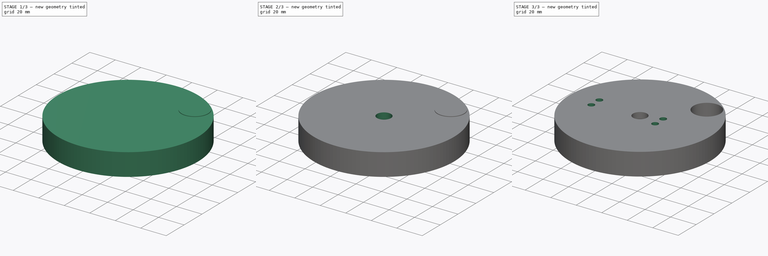
[diagram: build sequence overview — one tinted view per stage of 3, left to right]
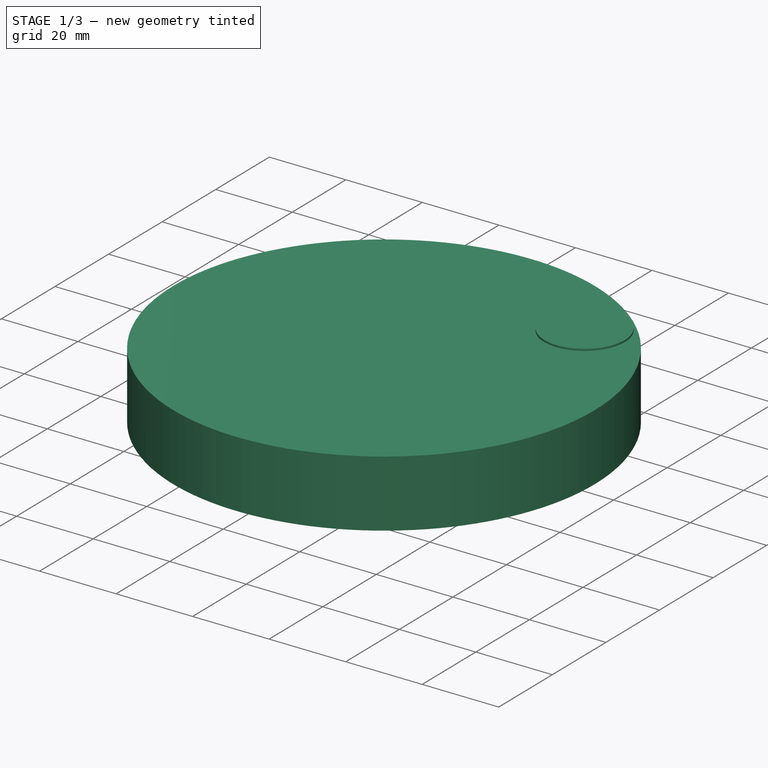
[diagram: stage 1 of 3 — iso view after this stage's code; geometry added in this stage tinted green]
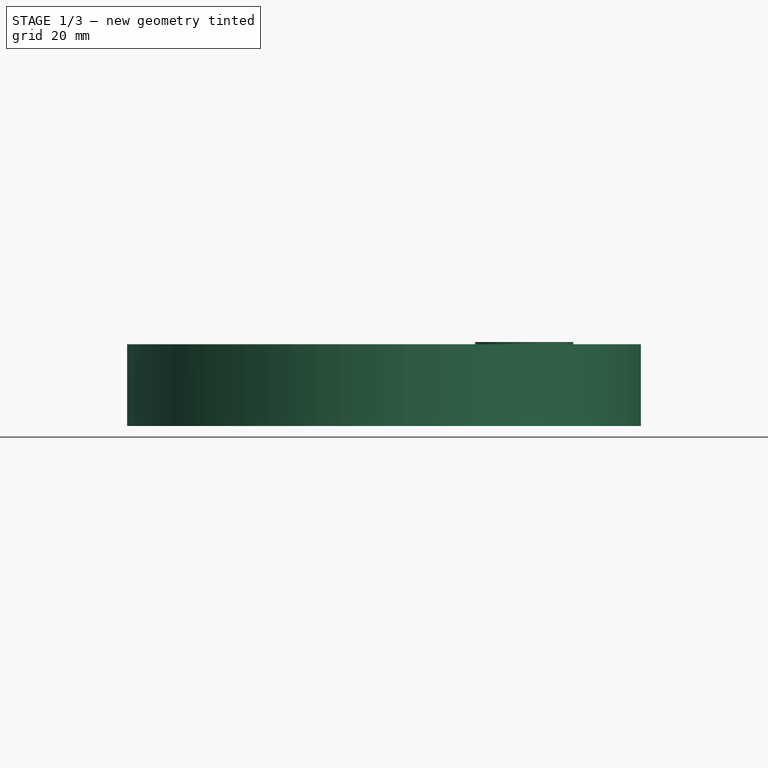
[diagram: stage 1 of 3 — front view after this stage's code; geometry added in this stage tinted green]
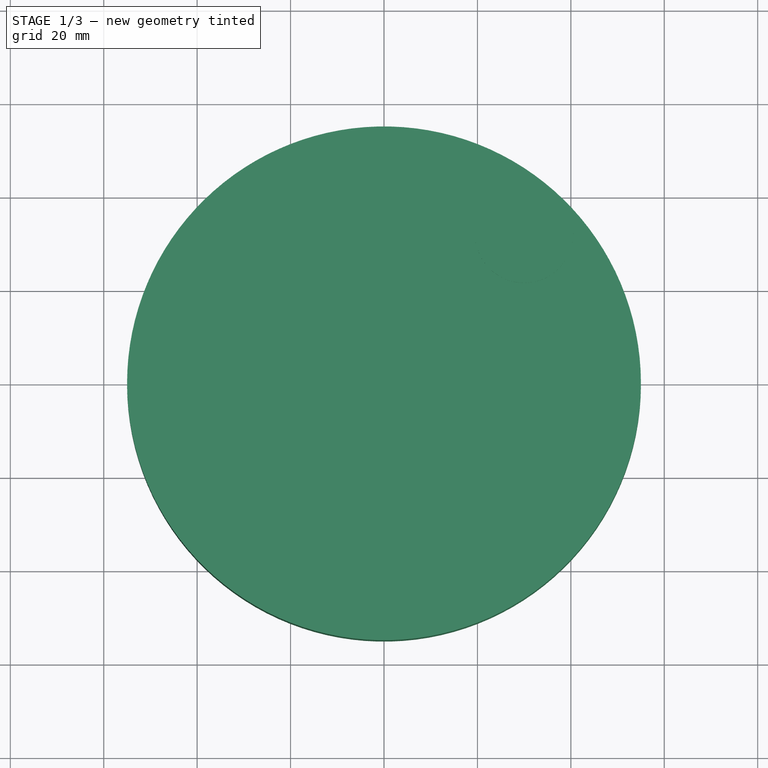
[diagram: stage 1 of 3 — top view after this stage's code; geometry added in this stage tinted green]
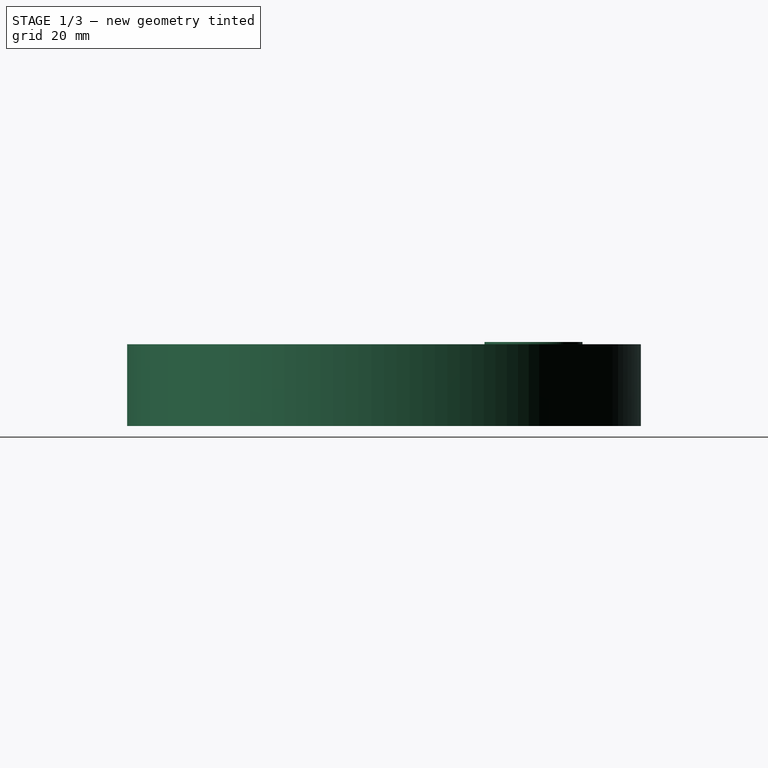
[diagram: stage 1 of 3 — right view after this stage's code; geometry added in this stage tinted green]
FCSTD DOCUMENT  (FreeCAD 0.15R4671 (Git))
Label: Base para el servo
License: All rights reserved
LicenseURL: http://en.wikipedia.org/wiki/All_rights_reserved
objects: Sketcher::SketchObject×5, PartDesign::Pocket×5, Part::Cylinder×2, Part::Cut×1
note: 18 computed .brp shape members not serialized (recipe doc carries the construction recipe); baked Part::Feature solids carry a one-line shape summary decoded from their .brp

FEATURE [Part::Cylinder] Cylinder  label="Cilindro"
  Angle = 360
  Height = 17.5
  Radius = 55
FEATURE [Sketcher::SketchObject] Sketch001
  Placement = pos=(0,0,0) rot=(1,0,0;3.14159rad)
  Support = -> Cylinder [Face3]
  sketch-geometry (4):
    g0: LineSegment StartX=18 StartY=10.5 StartZ=0 EndX=18 EndY=-10.5 EndZ=0
    g1: LineSegment StartX=18 StartY=-10.5 StartZ=0 EndX=-38 EndY=-10.5 EndZ=0
    g2: LineSegment StartX=-38 StartY=-10.5 StartZ=0 EndX=-38 EndY=10.5 EndZ=0
    g3: LineSegment StartX=-38 StartY=10.5 StartZ=0 EndX=18 EndY=10.5 EndZ=0
  constraints (12):
    c: Vertical(g0)
    c: Coincident(g0,g1)
    c: Horizontal(g1)
    c: Coincident(g1,g2)
    c: Vertical(g2)
    c: Coincident(g2,g3)
    c: Coincident(g3,g0)
    c: DistanceX(g-1,g0) = 18
    c: DistanceX(g-1,g2) = -38
    c: DistanceY(g0) = -21
    c: DistanceY(g2) = 21
    c: Symmetric(g0,g0,g-1)
FEATURE [PartDesign::Pocket] Pocket
  Length = 3.5
  Sketch = -> Sketch001
  Type = 0
FEATURE [Part::Cylinder] Cylinder001  label="Cilindro001"
  Angle = 360
  Height = 18
  Placement = pos=(30,32,0) rot=(0,0,1;0rad)
  Radius = 10.5
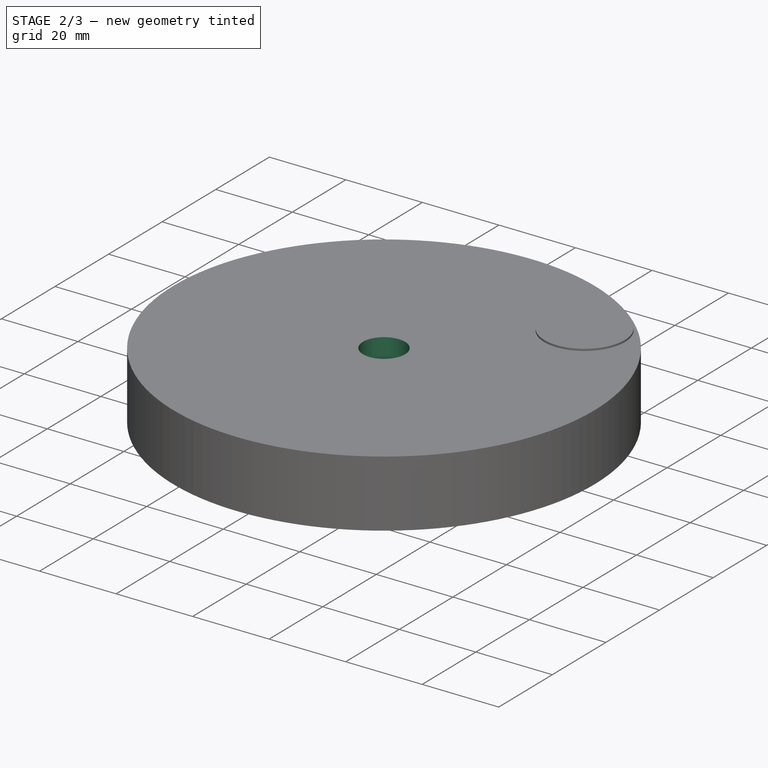
[diagram: stage 2 of 3 — iso view after this stage's code; geometry added in this stage tinted green]
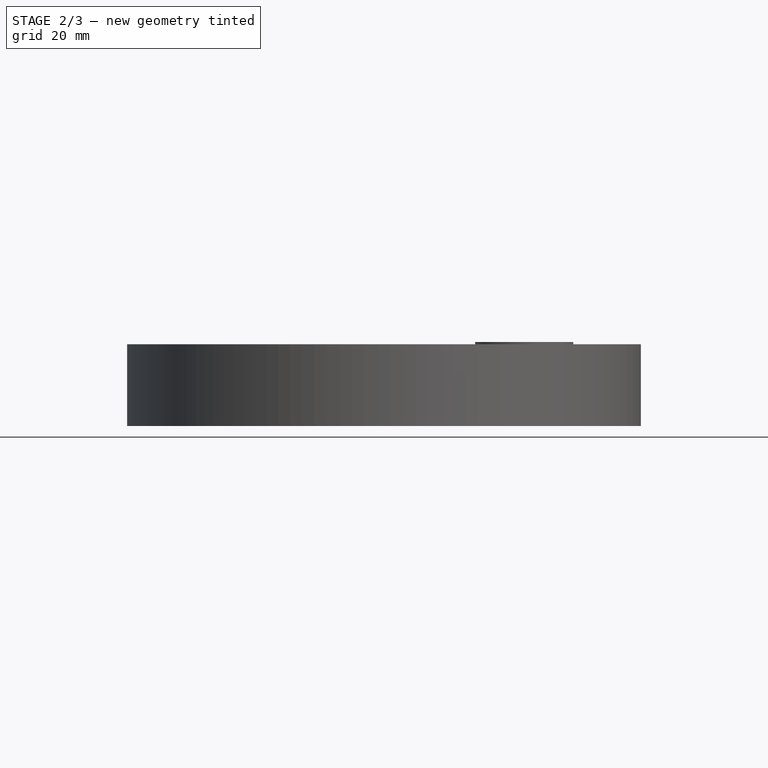
[diagram: stage 2 of 3 — front view after this stage's code; geometry added in this stage tinted green]
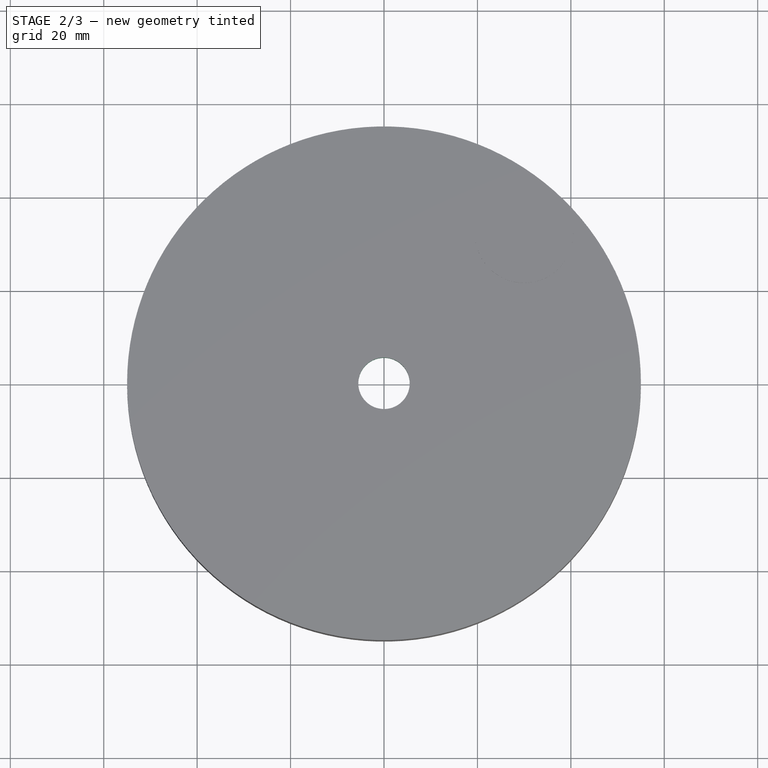
[diagram: stage 2 of 3 — top view after this stage's code; geometry added in this stage tinted green]
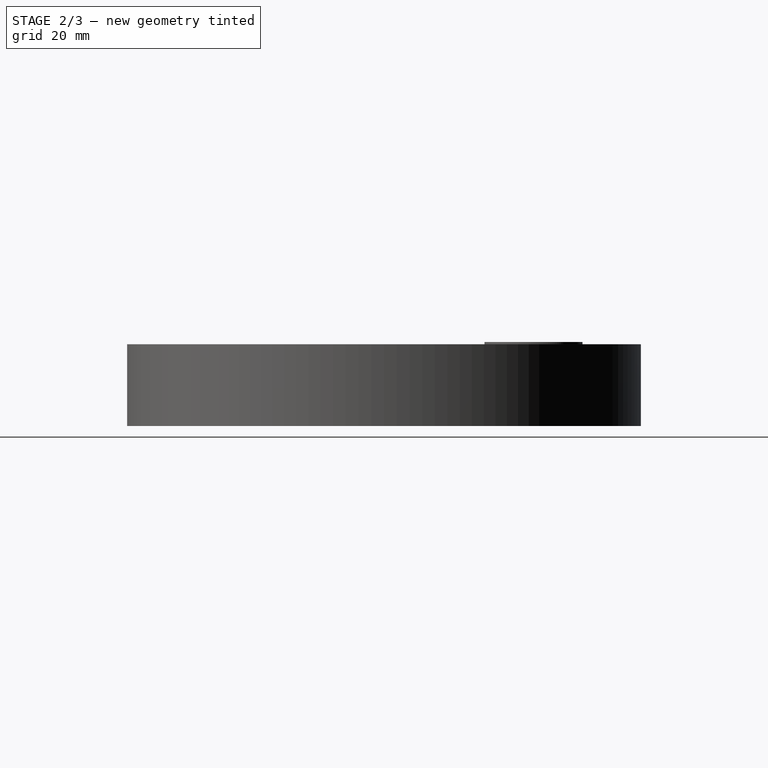
[diagram: stage 2 of 3 — right view after this stage's code; geometry added in this stage tinted green]
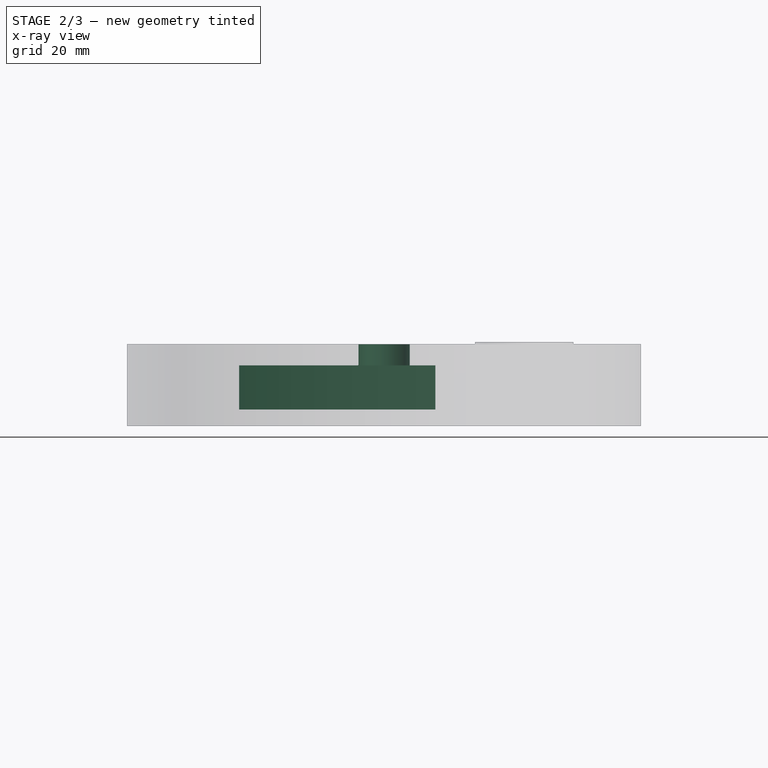
[diagram: stage 2 of 3 — x-ray composite at the front view; earlier geometry ghosted, this stage's added geometry solid]
FEATURE [Sketcher::SketchObject] Sketch
  Placement = pos=(0,0,3.5) rot=(1,0,0;3.14159rad)
  Support = -> Pocket [Face8]
  sketch-geometry (4):
    g0: LineSegment StartX=11 StartY=10.5 StartZ=0 EndX=11 EndY=-10.5 EndZ=0
    g1: LineSegment StartX=11 StartY=-10.5 StartZ=0 EndX=-31 EndY=-10.5 EndZ=0
    g2: LineSegment StartX=-31 StartY=-10.5 StartZ=0 EndX=-31 EndY=10.5 EndZ=0
    g3: LineSegment StartX=-31 StartY=10.5 StartZ=0 EndX=11 EndY=10.5 EndZ=0
  constraints (12):
    c: Vertical(g0)
    c: Coincident(g0,g1)
    c: Horizontal(g1)
    c: Coincident(g1,g2)
    c: Vertical(g2)
    c: Coincident(g2,g3)
    c: Coincident(g3,g0)
    c: Horizontal(g3)
    c: DistanceX(g-1,g0) = 11
    c: DistanceX(g-1,g2) = -31
    c: Symmetric(g0,g0,g-1)
    c: DistanceY(g0) = -21
FEATURE [PartDesign::Pocket] Pocket001
  Length = 9.5
  Sketch = -> Sketch
  Type = 0
FEATURE [Sketcher::SketchObject] Sketch002
  Placement = pos=(0,0,13) rot=(1,0,0;3.14159rad)
  Support = -> Pocket001 [Face13]
  sketch-geometry (1):
    g0: Circle CenterX=0 CenterY=0 CenterZ=0 NormalX=0 NormalY=0 NormalZ=1 Radius=5.5
  constraints (2):
    c: Coincident(g0,g-1)
    c: Radius(g0) = 5.5
FEATURE [PartDesign::Pocket] Pocket002
  Length = 5
  Sketch = -> Sketch002
  Type = 1
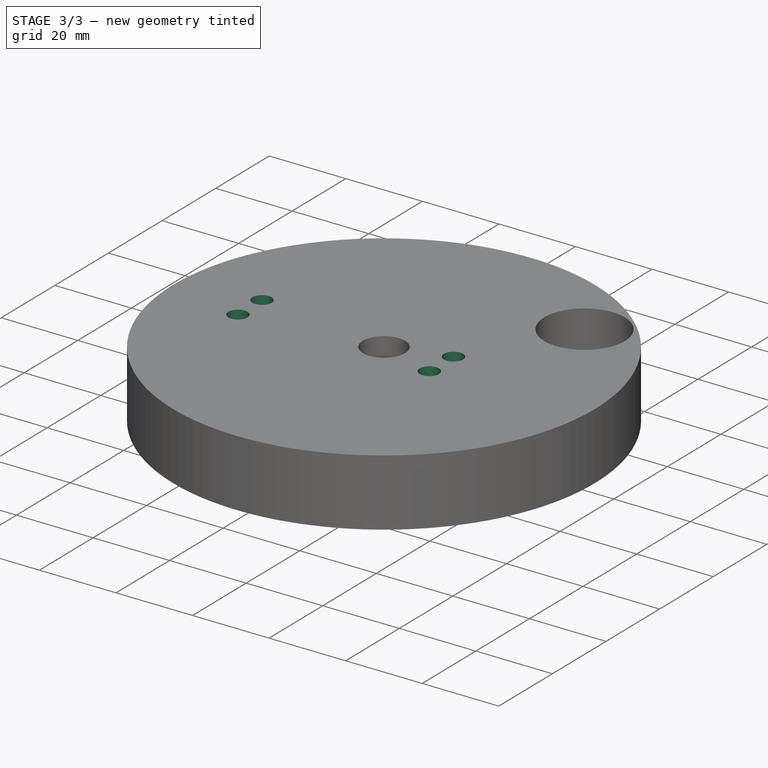
[diagram: stage 3 of 3 — iso view after this stage's code; geometry added in this stage tinted green]
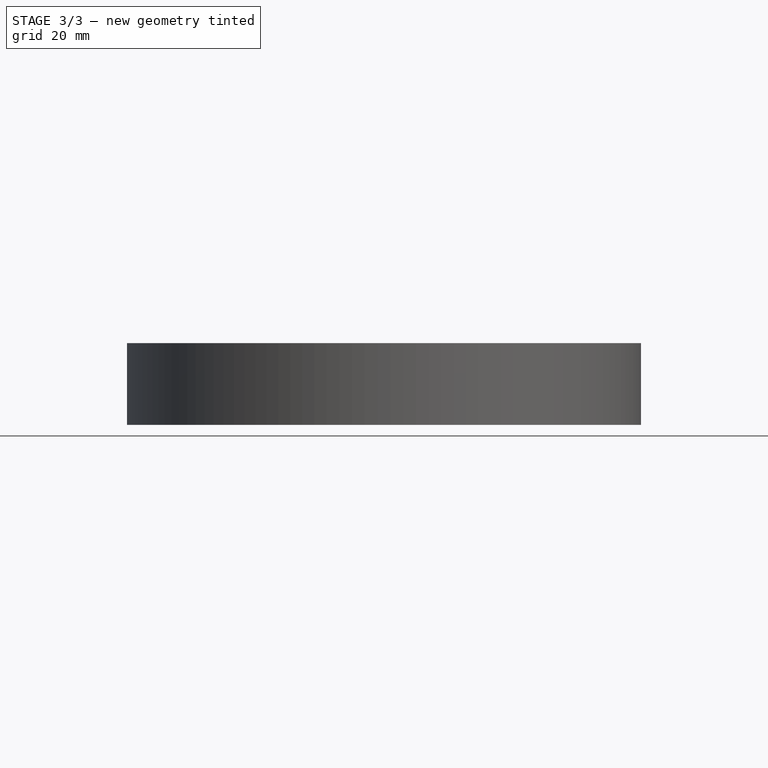
[diagram: stage 3 of 3 — front view after this stage's code; geometry added in this stage tinted green]
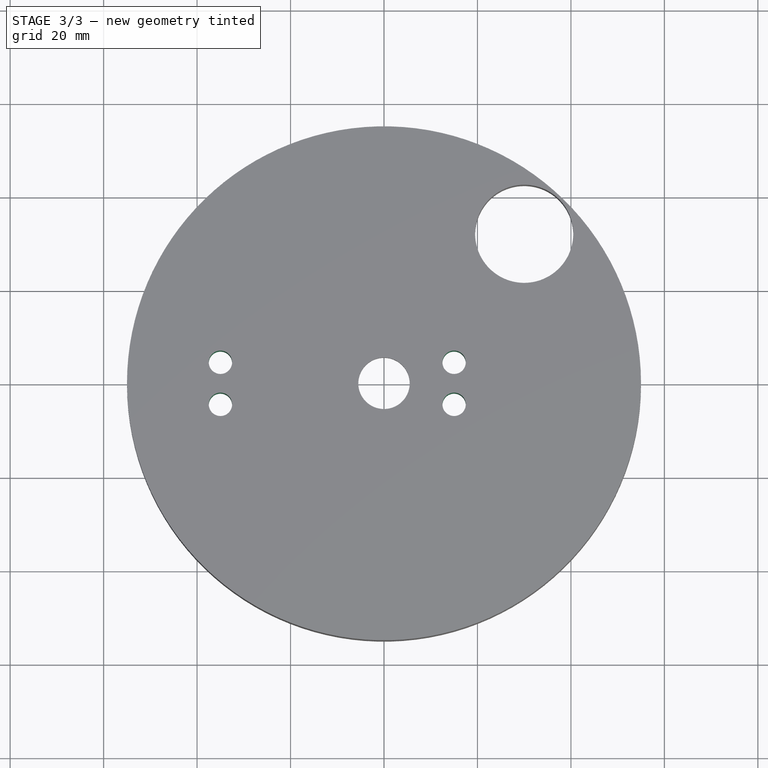
[diagram: stage 3 of 3 — top view after this stage's code; geometry added in this stage tinted green]
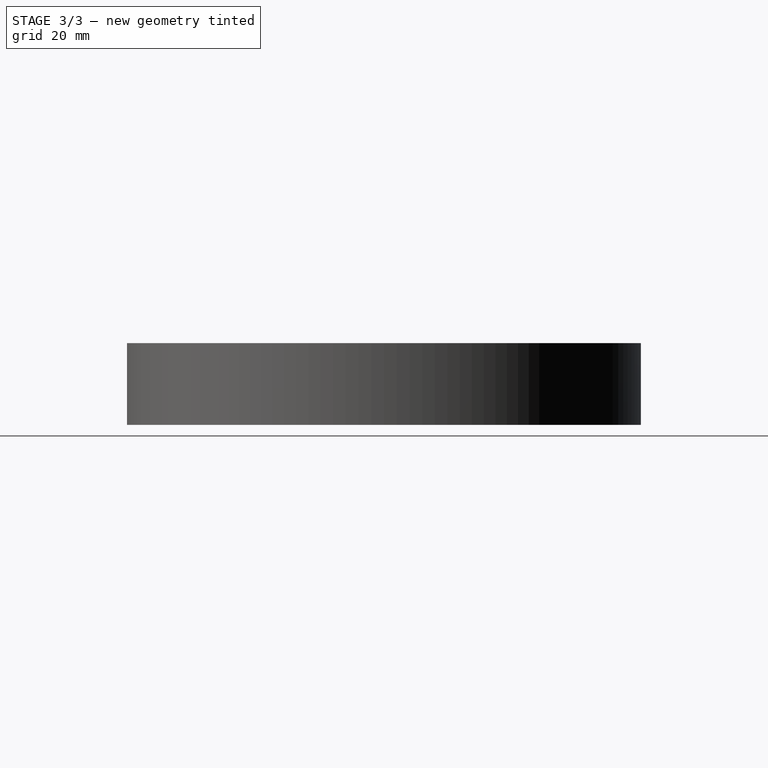
[diagram: stage 3 of 3 — right view after this stage's code; geometry added in this stage tinted green]
FEATURE [Sketcher::SketchObject] Sketch003
  Placement = pos=(0,0,3.5) rot=(1,0,0;3.14159rad)
  Support = -> Pocket002 [Face10]
  sketch-geometry (4):
    g0: GeomPoint [constr] X=-35 Y=4.5 Z=0
    g1: GeomPoint [constr] X=-35 Y=-4.5 Z=0
    g2: Circle CenterX=-35 CenterY=-4.5 CenterZ=0 NormalX=0 NormalY=0 NormalZ=1 Radius=2.5
    g3: Circle CenterX=-35 CenterY=4.5 CenterZ=0 NormalX=0 NormalY=0 NormalZ=1 Radius=2.5
  constraints (8):
    c: DistanceY(g0) = 4.5
    c: DistanceY(g-1,g1) = -4.5
    c: DistanceX(g-1,g0) = -35
    c: DistanceX(g1) = -35
    c: Coincident(g2,g1)
    c: Coincident(g3,g0)
    c: Radius(g3) = 2.5
    c: Radius(g2) = 2.5
FEATURE [PartDesign::Pocket] Pocket003
  Length = 5
  Sketch = -> Sketch003
  Type = 1
FEATURE [Sketcher::SketchObject] Sketch004
  Placement = pos=(0,0,3.5) rot=(1,0,0;3.14159rad)
  Support = -> Pocket003 [Face14]
  sketch-geometry (4):
    g0: GeomPoint [constr] X=15 Y=4.5 Z=0
    g1: GeomPoint [constr] X=15 Y=-4.5 Z=0
    g2: Circle CenterX=15 CenterY=4.5 CenterZ=0 NormalX=0 NormalY=0 NormalZ=1 Radius=2.5
    g3: Circle CenterX=15 CenterY=-4.5 CenterZ=0 NormalX=0 NormalY=0 NormalZ=1 Radius=2.5
  constraints (8):
    c: DistanceY(g-1,g0) = 4.5
    c: DistanceY(g1) = -4.5
    c: DistanceX(g1) = 15
    c: DistanceX(g0) = 15
    c: Coincident(g2,g0)
    c: Radius(g2) = 2.5
    c: Coincident(g3,g1)
    c: Radius(g3) = 2.5
FEATURE [PartDesign::Pocket] Pocket004
  Length = 5
  Sketch = -> Sketch004
  Type = 1
FEATURE [Part::Cut] Cut
  Base = -> Pocket004
  Tool = -> Cylinder001
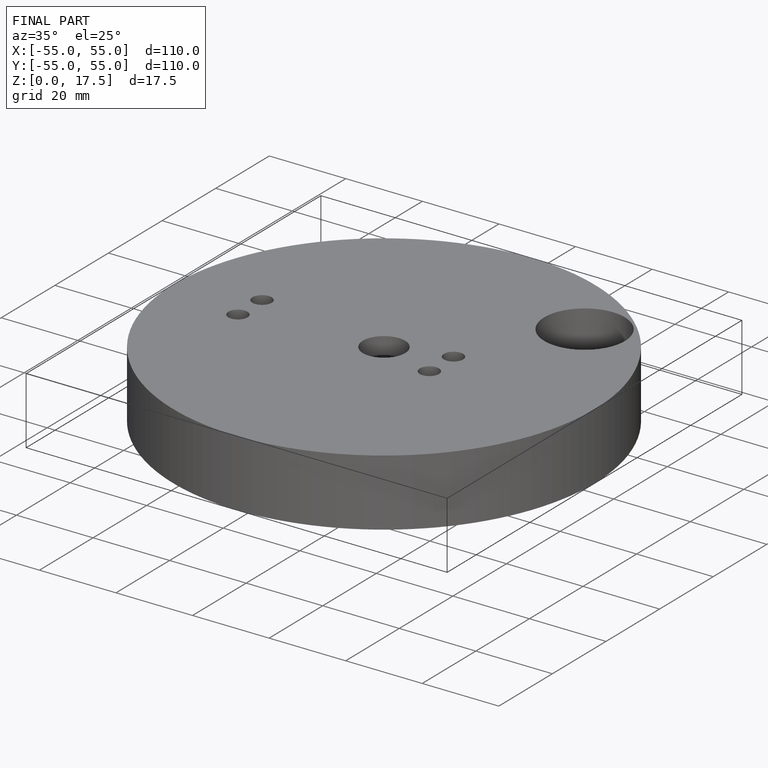
[diagram: finished part — iso view with bounding-box wireframe]
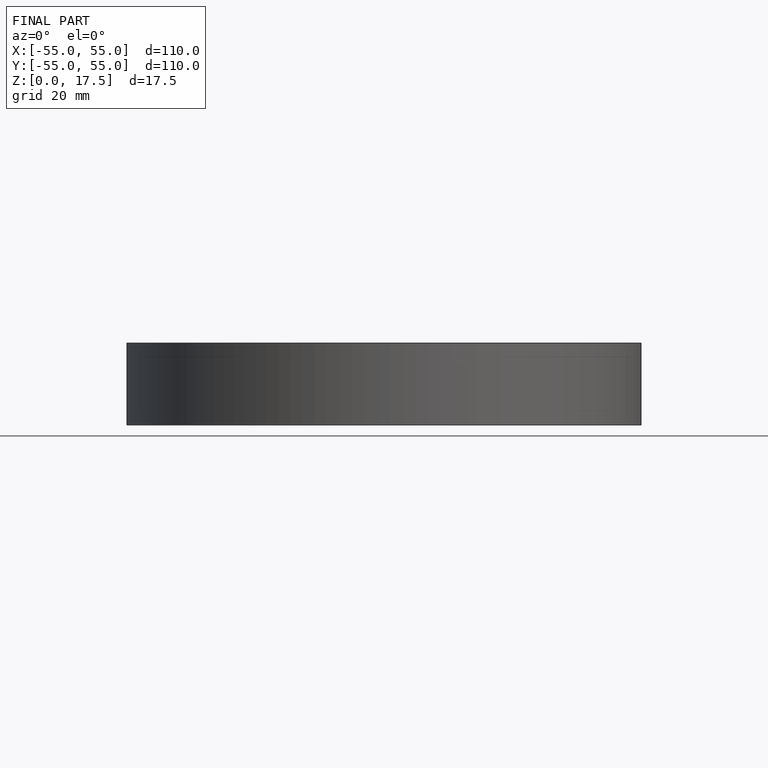
[diagram: finished part — front view with bounding-box wireframe]
